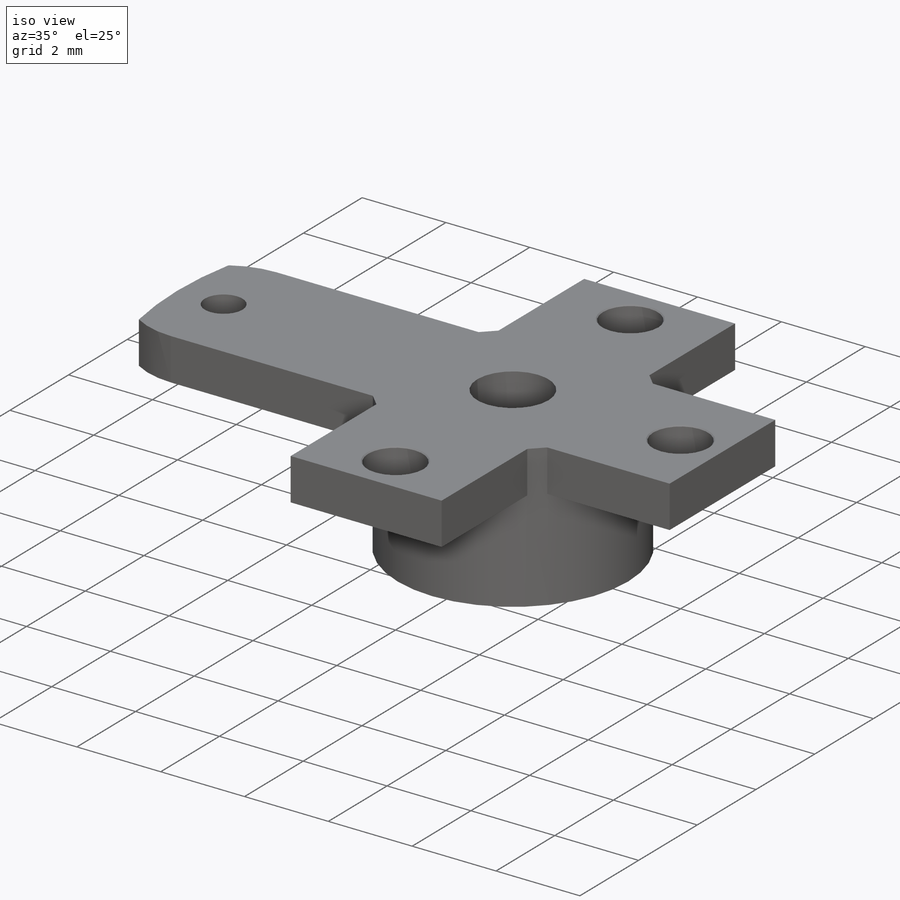
[diagram: iso view]
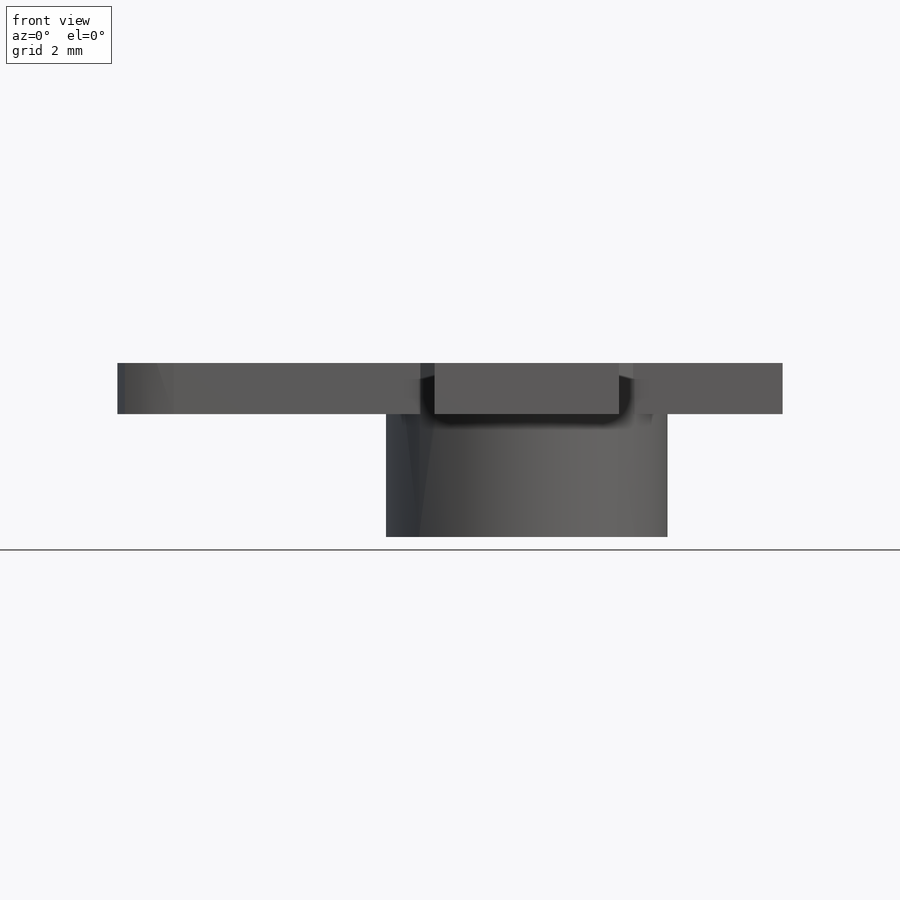
[diagram: front view]
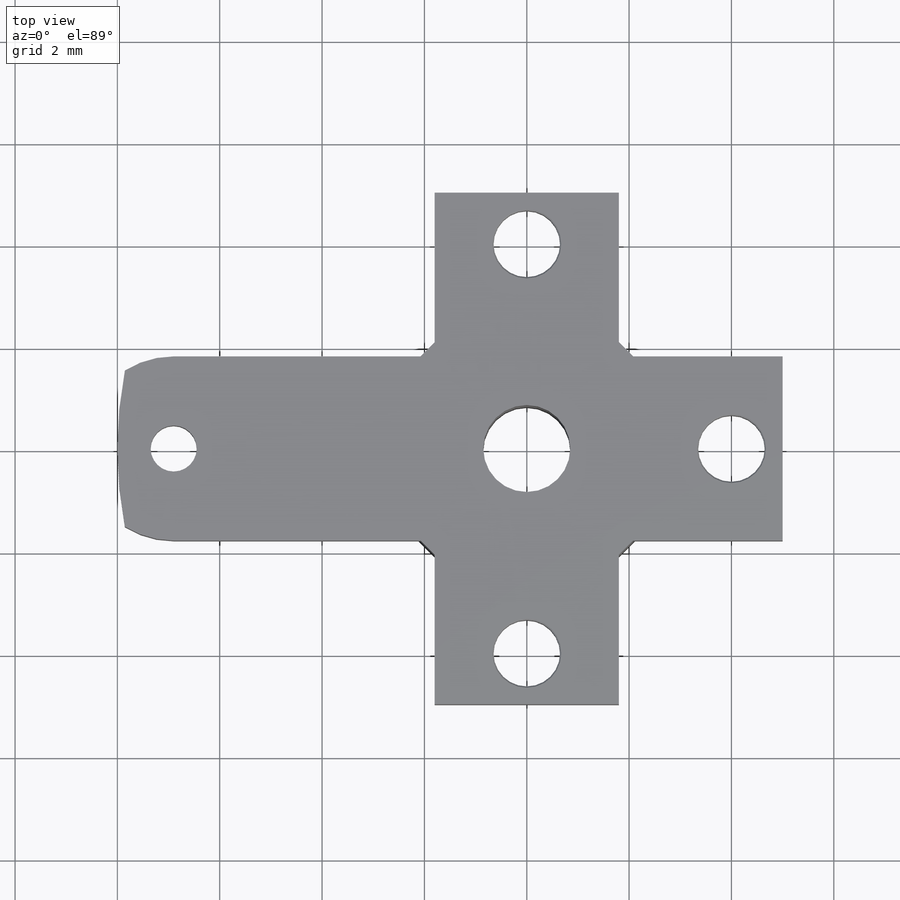
[diagram: top view]
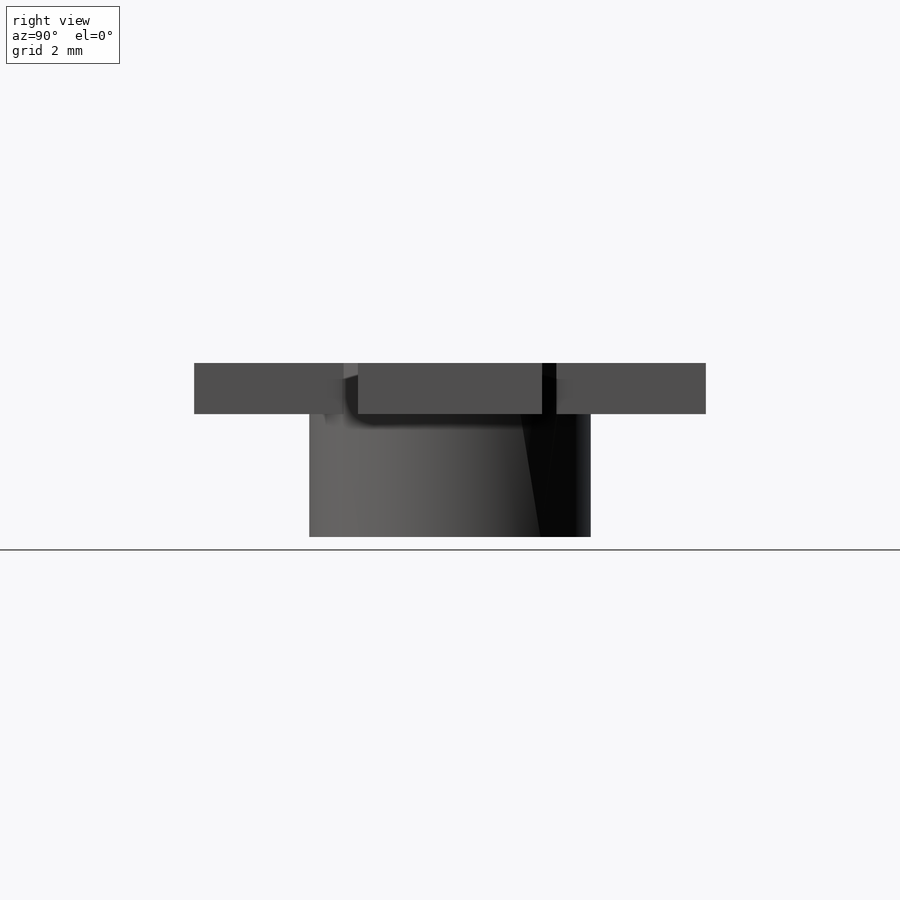
[diagram: right view]
SOLIDWORKS PART (.sldprt)
format: sldprt  version: not decoded by parser v0  size: 248,320 bytes
history: native  units: mm
features: sketch x5, plane x3, extrude x2, material x1, cut_extrude x1, hole x1 (+13 scaffold rows collapsed)
feature tree (26):
  scaffold x13  (default folders/planes/origin — collapsed)
  material  "Материал <не указан>"
  plane  "Спереди"
  plane  "Сверху"
  plane  "Справа"
  sketch  "Эскиз1"  dims[D1=5.5mm D2=1.7mm]
  extrude  "Бобышка-Вытянуть1"  Depth=3.4mm
  sketch  "Эскиз2"  dims[c1.D2=5.5mm c1.D4=0.9mm c1.D1=3.6mm c2.D2=6.9mm c2.D3=4.0]
  extrude  "Бобышка-Вытянуть2"  Depth=1mm
  sketch  "Эскиз3"  dims[c1.D2=1.7mm c1.D3=8.0mm c1.D1=5.0mm c2.D2=5.0mm]
  cut_extrude  "Вырез-Вытянуть1"  [1 undecoded]
  hole  "Диаметр отверстия Ø1.3 (1.3)1"  [1 undecoded]
  sketch  "Эскиз5"  dims[D1=4.0mm D2=4.0mm D3=4.0mm]
  sketch  "Эскиз4"  dims[hole-wizard template sketch: 46 standard entries collapsed; hole parameters kept: c15.Диаметр сквозного отверстия=1.3mm c15.Глубина сквозного отверстия=1.0mm c15.Диаметр передней зенковки=1.35mm c15.D4=~3.666174mm c15.Угол передней зенковки=90.0deg c15.Диаметр задней зенковки=1.35mm c15.D6=~9.919017mm c15.Угол задней зенковки=90.0deg]
decode coverage: 7 of 9 modeling features carry decoded parameters
note: ~ marks probable driven/reference dimensions
note: 2 parameter values undecoded
note: suppression state not decoded; provenance and decode notes live in map.json
